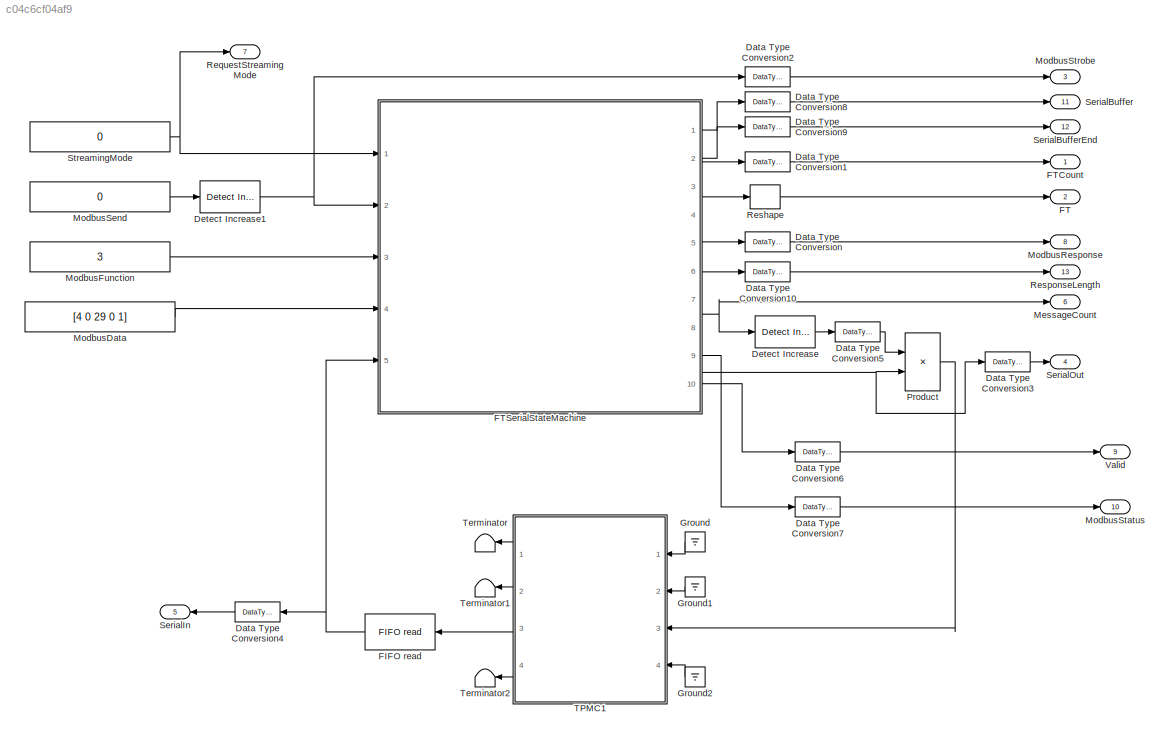
MODEL slx_c04c6cf04af9
KIND model
BLOCK [DataTypeConversion] Data Type Conversion
  OutDataTypeStr = double
  RndMeth = Floor
  SaturateOnIntegerOverflow = off
BLOCK [DataTypeConversion] Data Type Conversion1
  OutDataTypeStr = double
  RndMeth = Floor
  SaturateOnIntegerOverflow = off
BLOCK [DataTypeConversion] Data Type Conversion10
  OutDataTypeStr = double
  RndMeth = Floor
  SaturateOnIntegerOverflow = off
BLOCK [DataTypeConversion] Data Type Conversion2
  OutDataTypeStr = double
  RndMeth = Floor
  SaturateOnIntegerOverflow = off
BLOCK [DataTypeConversion] Data Type Conversion3
  OutDataTypeStr = double
  RndMeth = Floor
  SaturateOnIntegerOverflow = off
BLOCK [DataTypeConversion] Data Type Conversion4
  OutDataTypeStr = double
  RndMeth = Floor
  SaturateOnIntegerOverflow = off
BLOCK [DataTypeConversion] Data Type Conversion5
  OutDataTypeStr = uint16
  RndMeth = Floor
  SaturateOnIntegerOverflow = off
BLOCK [DataTypeConversion] Data Type Conversion6
  OutDataTypeStr = double
  RndMeth = Floor
  SaturateOnIntegerOverflow = off
BLOCK [DataTypeConversion] Data Type Conversion7
  OutDataTypeStr = double
  RndMeth = Floor
  SaturateOnIntegerOverflow = off
BLOCK [DataTypeConversion] Data Type Conversion8
  OutDataTypeStr = double
  RndMeth = Floor
  SaturateOnIntegerOverflow = off
BLOCK [DataTypeConversion] Data Type Conversion9
  OutDataTypeStr = double
  RndMeth = Floor
  SaturateOnIntegerOverflow = off
BLOCK [Reference] Detect Increase  REF=simulink/Logic and Bit
Operations/Detect
Increase
  InputProcessing = Inherited
  OutDataTypeStr = uint8
  Ports = [1, 1]
  SourceBlock = simulink/Logic and Bit\nOperations/Detect\nIncrease
  SourceType = Detect Increase
  vinit = 0.0
BLOCK [Reference] Detect Increase1  REF=simulink/Logic and Bit
Operations/Detect
Increase
  InputProcessing = Inherited
  OutDataTypeStr = uint8
  Ports = [1, 1]
  SourceBlock = simulink/Logic and Bit\nOperations/Detect\nIncrease
  SourceType = Detect Increase
  vinit = 0.0
BLOCK [Reference] FIFO read   REF=xpcseriallib/FIFO read 
  Ports = [1, 1]
  SourceBlock = xpcseriallib/FIFO read
  SourceType = Asynchronous FIFO Block: reader
  delimiter = 13
  enable = off
  enableout = off
  maxsize = 255
  minsize = 1
  outputtype = count+16 bit uint
  sampletime = 0.001
  usedelimiter = off
BLOCK [Outport] FT
  IconDisplay = Port number
  Port = 2
BLOCK [Outport] FTCount
  IconDisplay = Port number
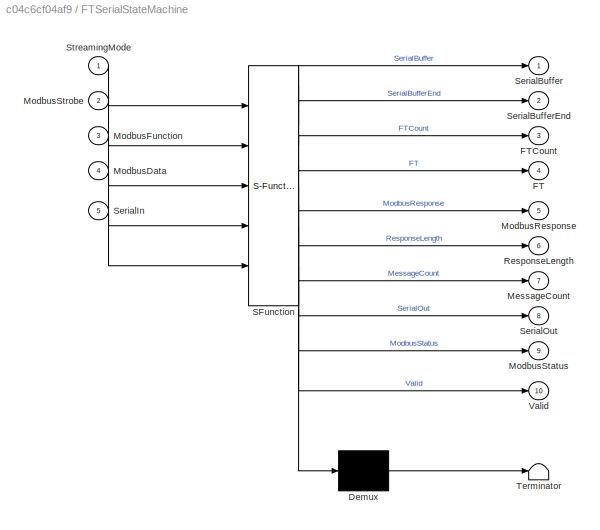
BLOCK [SubSystem] FTSerialStateMachine
  ErrorFcn = Stateflow.Translate.translate
  FunctionWithSeparateData = off
  MaskHideContents = off
  MinAlgLoopOccurrences = off
  Opaque = off
  PermitHierarchicalResolution = ExplicitOnly
  Ports = [5, 10]
  PropExecContextOutsideSubsystem = off
  RTWSystemCode = Auto
  RequestExecContextInheritance = off
  SFBlockType = Chart
  TreatAsAtomicUnit = on
BLOCK [Demux] FTSerialStateMachine/ Demux 
  Outputs = 1
  Ports = [1, 1]
BLOCK [S-Function] FTSerialStateMachine/ SFunction 
  EnableBusSupport = on
  FunctionName = sf_sfun
  Parameters = MODBUS_TIMEOUT,STREAMING_TIMEOUT
  PortCounts = [5 11]
  Ports = [5, 11]
  Tag = Stateflow S-Function FTTest05 3
BLOCK [Terminator] FTSerialStateMachine/ Terminator 
BLOCK [Outport] FTSerialStateMachine/FT
  IconDisplay = Port number
  Port = 4
BLOCK [Outport] FTSerialStateMachine/FTCount
  IconDisplay = Port number
  Port = 3
BLOCK [Outport] FTSerialStateMachine/MessageCount
  IconDisplay = Port number
  Port = 7
BLOCK [Inport] FTSerialStateMachine/ModbusData
  IconDisplay = Port number
  Port = 4
BLOCK [Inport] FTSerialStateMachine/ModbusFunction
  IconDisplay = Port number
  Port = 3
BLOCK [Outport] FTSerialStateMachine/ModbusResponse
  IconDisplay = Port number
  Port = 5
BLOCK [Outport] FTSerialStateMachine/ModbusStatus
  IconDisplay = Port number
  Port = 9
BLOCK [Inport] FTSerialStateMachine/ModbusStrobe
  IconDisplay = Port number
  Port = 2
BLOCK [Outport] FTSerialStateMachine/ResponseLength
  IconDisplay = Port number
  Port = 6
BLOCK [Outport] FTSerialStateMachine/SerialBuffer
  IconDisplay = Port number
BLOCK [Outport] FTSerialStateMachine/SerialBufferEnd
  IconDisplay = Port number
  Port = 2
BLOCK [Inport] FTSerialStateMachine/SerialIn
  IconDisplay = Port number
  Port = 5
BLOCK [Outport] FTSerialStateMachine/SerialOut
  IconDisplay = Port number
  Port = 8
BLOCK [Inport] FTSerialStateMachine/StreamingMode
  IconDisplay = Port number
BLOCK [Outport] FTSerialStateMachine/Valid
  IconDisplay = Port number
  Port = 10
BLOCK [Ground] Ground
BLOCK [Ground] Ground1
BLOCK [Ground] Ground2
BLOCK [Outport] MessageCount
  IconDisplay = Port number
  Port = 6
BLOCK [Constant] ModbusData
  OutDataTypeStr = uint16
  Value = [4 0 29 0 1]
BLOCK [Constant] ModbusFunction
  OutDataTypeStr = uint16
  Value = 3
BLOCK [Outport] ModbusResponse
  IconDisplay = Port number
  Port = 8
BLOCK [Constant] ModbusSend
  OutDataTypeStr = uint16
  Value = 0
BLOCK [Outport] ModbusStatus
  IconDisplay = Port number
  Port = 10
BLOCK [Outport] ModbusStrobe
  IconDisplay = Port number
  Port = 3
BLOCK [Product] Product
  InputSameDT = off
  OutDataTypeStr = uint16
  Ports = [2, 1]
  RndMeth = Floor
  SaturateOnIntegerOverflow = off
BLOCK [Outport] RequestStreamingMode
  IconDisplay = Port number
  Port = 7
BLOCK [Reshape] Reshape
  Ports = [1, 1]
BLOCK [Outport] ResponseLength
  IconDisplay = Port number
  Port = 13
BLOCK [Outport] SerialBuffer
  IconDisplay = Port number
  Port = 11
BLOCK [Outport] SerialBufferEnd
  IconDisplay = Port number
  Port = 12
BLOCK [Outport] SerialIn
  IconDisplay = Port number
  Port = 5
BLOCK [Outport] SerialOut
  IconDisplay = Port number
  Port = 4
BLOCK [Constant] StreamingMode
  OutDataTypeStr = double
  Value = 0
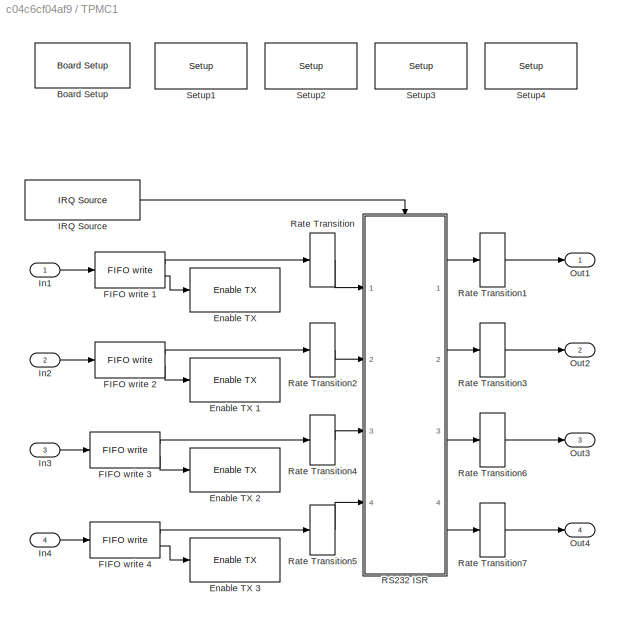
BLOCK [SubSystem] TPMC1
  AncestorBlock = speedgoatlib/IO503/TPMC466
  FunctionWithSeparateData = off
  InitFcn = m_XR17D15x(3);
  MaskHideContents = off
  MinAlgLoopOccurrences = off
  Opaque = off
  Ports = [4, 4]
  PropExecContextOutsideSubsystem = off
  RTWSystemCode = Auto
  RequestExecContextInheritance = off
BLOCK [Reference] TPMC1/Board Setup  REF=speedgoatlib/IO503/TEWS TPMC466  (lib defined in mdl_2b10c7445f81, mdl_649b3eec89a6, +4 more)
Internal blocks/Board Setup
  Ports = []
  SourceBlock = speedgoatlib/IO503/TEWS TPMC466\nInternal blocks/Board Setup
  SourceType = board_setup_XR17D15x
  irqnum = 5
  slot = brdslot
BLOCK [Reference] TPMC1/Enable TX   REF=speedgoatlib/IO503/TEWS TPMC466  (lib defined in mdl_2b10c7445f81, mdl_649b3eec89a6, +4 more)
Internal blocks/Enable TX 
  Ports = [1]
  SourceBlock = speedgoatlib/IO503/TEWS TPMC466\nInternal blocks/Enable TX
  SourceType = tx_int_enable_XR17D15x
  port = 1
  slot = brdslot
BLOCK [Reference] TPMC1/Enable TX 1  REF=speedgoatlib/IO503/TEWS TPMC466  (lib defined in mdl_2b10c7445f81, mdl_649b3eec89a6, +4 more)
Internal blocks/Enable TX 
  Ports = [1]
  SourceBlock = speedgoatlib/IO503/TEWS TPMC466\nInternal blocks/Enable TX
  SourceType = tx_int_enable_XR17D15x
  port = 2
  slot = brdslot
BLOCK [Reference] TPMC1/Enable TX 2  REF=speedgoatlib/IO503/TEWS TPMC466  (lib defined in mdl_2b10c7445f81, mdl_649b3eec89a6, +4 more)
Internal blocks/Enable TX 
  Ports = [1]
  SourceBlock = speedgoatlib/IO503/TEWS TPMC466\nInternal blocks/Enable TX
  SourceType = tx_int_enable_XR17D15x
  port = 3
  slot = brdslot
BLOCK [Reference] TPMC1/Enable TX 3  REF=speedgoatlib/IO503/TEWS TPMC466  (lib defined in mdl_2b10c7445f81, mdl_649b3eec89a6, +4 more)
Internal blocks/Enable TX 
  Ports = [1]
  SourceBlock = speedgoatlib/IO503/TEWS TPMC466\nInternal blocks/Enable TX
  SourceType = tx_int_enable_XR17D15x
  port = 4
  slot = brdslot
BLOCK [Reference] TPMC1/FIFO write 1  REF=xpcseriallib/FIFO write 
  Ports = [1, 2]
  SourceBlock = xpcseriallib/FIFO write
  SourceType = Asynchronous FIFO Block: writer
  id = XMT channel 1, IRQ 5
  inputtype = 8 bit uint null terminated
  present = on
  sampletime = -1
  size = 1024
BLOCK [Reference] TPMC1/FIFO write 2  REF=xpcseriallib/FIFO write 
  Ports = [1, 2]
  SourceBlock = xpcseriallib/FIFO write
  SourceType = Asynchronous FIFO Block: writer
  id = XMT channel 2, IRQ 5
  inputtype = 8 bit uint null terminated
  present = on
  sampletime = -1
  size = 1024
BLOCK [Reference] TPMC1/FIFO write 3  REF=xpcseriallib/FIFO write 
  Ports = [1, 2]
  SourceBlock = xpcseriallib/FIFO write
  SourceType = Asynchronous FIFO Block: writer
  id = XMT channel 3, IRQ 5
  inputtype = count+16 bit uint
  present = on
  sampletime = -1
  size = 128
BLOCK [Reference] TPMC1/FIFO write 4  REF=xpcseriallib/FIFO write 
  Ports = [1, 2]
  SourceBlock = xpcseriallib/FIFO write
  SourceType = Asynchronous FIFO Block: writer
  id = XMT channel 4, IRQ 5
  inputtype = 8 bit uint null terminated
  present = on
  sampletime = -1
  size = 1024
BLOCK [Reference] TPMC1/IRQ Source  REF=xpclib/Asynchronous
Event/IRQ Source
  Ports = [0, 1]
  SourceBlock = xpclib/Asynchronous\nEvent/IRQ Source
  SourceType = xpcinterrupt
  b_type = None/Other
  irqNo = 5
  preempt = off
  slot = brdslot
BLOCK [Inport] TPMC1/In1
  IconDisplay = Port number
BLOCK [Inport] TPMC1/In2
  IconDisplay = Port number
  Port = 2
BLOCK [Inport] TPMC1/In3
  IconDisplay = Port number
  Port = 3
BLOCK [Inport] TPMC1/In4
  IconDisplay = Port number
  Port = 4
BLOCK [Outport] TPMC1/Out1
  IconDisplay = Port number
BLOCK [Outport] TPMC1/Out2
  IconDisplay = Port number
  Port = 2
BLOCK [Outport] TPMC1/Out3
  IconDisplay = Port number
  Port = 3
BLOCK [Outport] TPMC1/Out4
  IconDisplay = Port number
  Port = 4
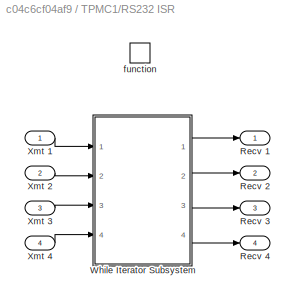
BLOCK [SubSystem] TPMC1/RS232 ISR
  FunctionWithSeparateData = off
  MaskHideContents = off
  MinAlgLoopOccurrences = off
  Opaque = off
  Ports = [4, 4, 0, 1]
  PropExecContextOutsideSubsystem = off
  RTWSystemCode = Auto
  RequestExecContextInheritance = off
  TreatAsAtomicUnit = on
BLOCK [Outport] TPMC1/RS232 ISR/Recv 1
  IconDisplay = Port number
  SourceOfInitialOutputValue = Input signal
BLOCK [Outport] TPMC1/RS232 ISR/Recv 2
  IconDisplay = Port number
  Port = 2
  SourceOfInitialOutputValue = Input signal
BLOCK [Outport] TPMC1/RS232 ISR/Recv 3
  IconDisplay = Port number
  Port = 3
  SourceOfInitialOutputValue = Input signal
BLOCK [Outport] TPMC1/RS232 ISR/Recv 4
  IconDisplay = Port number
  Port = 4
  SourceOfInitialOutputValue = Input signal
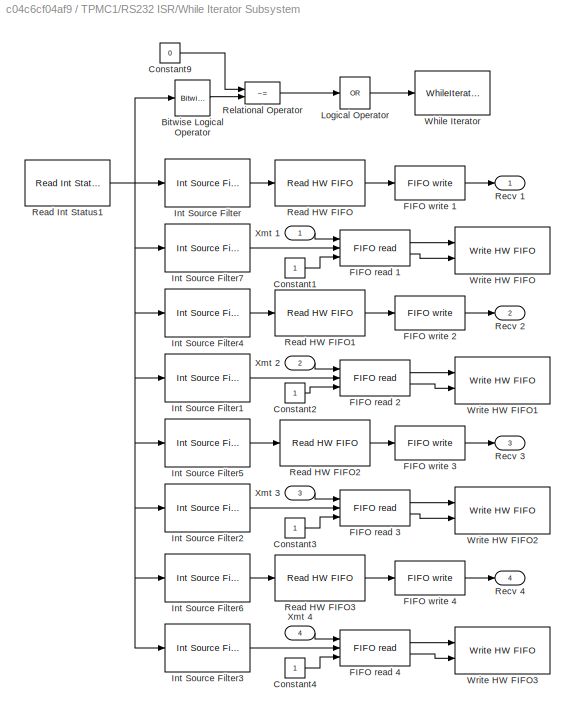
BLOCK [SubSystem] TPMC1/RS232 ISR/While Iterator Subsystem
  FunctionWithSeparateData = off
  MaskHideContents = off
  MinAlgLoopOccurrences = off
  Opaque = off
  Ports = [4, 4]
  PropExecContextOutsideSubsystem = off
  RTWSystemCode = Auto
  RequestExecContextInheritance = off
  TreatAsAtomicUnit = on
BLOCK [Reference] TPMC1/RS232 ISR/While Iterator Subsystem/Bitwise Logical Operator  REF=simulink/Logic and Bit
Operations/Bitwise
Operator
  BitMask = 'FF'
  BitMaskRealWorld = Stored Integer
  NumInputPorts = 1
  Ports = [1, 1]
  SourceBlock = simulink/Logic and Bit\nOperations/Bitwise\nOperator
  SourceType = Bitwise Operator
  UseBitMask = on
  logicop = AND
BLOCK [Constant] TPMC1/RS232 ISR/While Iterator Subsystem/Constant1
  OutDataTypeStr = uint32
BLOCK [Constant] TPMC1/RS232 ISR/While Iterator Subsystem/Constant2
  OutDataTypeStr = uint32
BLOCK [Constant] TPMC1/RS232 ISR/While Iterator Subsystem/Constant3
  OutDataTypeStr = uint32
BLOCK [Constant] TPMC1/RS232 ISR/While Iterator Subsystem/Constant4
  OutDataTypeStr = uint32
BLOCK [Constant] TPMC1/RS232 ISR/While Iterator Subsystem/Constant9
  OutDataTypeStr = uint32
  Value = 0
BLOCK [Reference] TPMC1/RS232 ISR/While Iterator Subsystem/FIFO read 1  REF=xpcseriallib/FIFO read 
  Ports = [3, 2]
  SourceBlock = xpcseriallib/FIFO read
  SourceType = Asynchronous FIFO Block: reader
  delimiter = 13
  enable = on
  enableout = on
  maxsize = 60
  minsize = 1
  outputtype = count+32 bit uint
  sampletime = -1
  usedelimiter = off
BLOCK [Reference] TPMC1/RS232 ISR/While Iterator Subsystem/FIFO read 2  REF=xpcseriallib/FIFO read 
  Ports = [3, 2]
  SourceBlock = xpcseriallib/FIFO read
  SourceType = Asynchronous FIFO Block: reader
  delimiter = 13
  enable = on
  enableout = on
  maxsize = 60
  minsize = 1
  outputtype = count+32 bit uint
  sampletime = -1
  usedelimiter = off
BLOCK [Reference] TPMC1/RS232 ISR/While Iterator Subsystem/FIFO read 3  REF=xpcseriallib/FIFO read 
  Ports = [3, 2]
  SourceBlock = xpcseriallib/FIFO read
  SourceType = Asynchronous FIFO Block: reader
  delimiter = 13
  enable = on
  enableout = on
  maxsize = 60
  minsize = 1
  outputtype = count+32 bit uint
  sampletime = -1
  usedelimiter = off
BLOCK [Reference] TPMC1/RS232 ISR/While Iterator Subsystem/FIFO read 4  REF=xpcseriallib/FIFO read 
  Ports = [3, 2]
  SourceBlock = xpcseriallib/FIFO read
  SourceType = Asynchronous FIFO Block: reader
  delimiter = 13
  enable = on
  enableout = on
  maxsize = 60
  minsize = 1
  outputtype = count+32 bit uint
  sampletime = -1
  usedelimiter = off
BLOCK [Reference] TPMC1/RS232 ISR/While Iterator Subsystem/FIFO write 1  REF=xpcseriallib/FIFO write 
  Ports = [1, 1]
  SourceBlock = xpcseriallib/FIFO write
  SourceType = Asynchronous FIFO Block: writer
  id = RCV channel 1, IRQ 5
  inputtype = count+32 bit uint
  present = off
  sampletime = -1
  size = 1024
BLOCK [Reference] TPMC1/RS232 ISR/While Iterator Subsystem/FIFO write 2  REF=xpcseriallib/FIFO write 
  Ports = [1, 1]
  SourceBlock = xpcseriallib/FIFO write
  SourceType = Asynchronous FIFO Block: writer
  id = RCV channel 2, IRQ 5
  inputtype = count+32 bit uint
  present = off
  sampletime = -1
  size = 1024
BLOCK [Reference] TPMC1/RS232 ISR/While Iterator Subsystem/FIFO write 3  REF=xpcseriallib/FIFO write 
  Ports = [1, 1]
  SourceBlock = xpcseriallib/FIFO write
  SourceType = Asynchronous FIFO Block: writer
  id = RCV channel 3, IRQ 5
  inputtype = count+32 bit uint
  present = off
  sampletime = -1
  size = 1024
BLOCK [Reference] TPMC1/RS232 ISR/While Iterator Subsystem/FIFO write 4  REF=xpcseriallib/FIFO write 
  Ports = [1, 1]
  SourceBlock = xpcseriallib/FIFO write
  SourceType = Asynchronous FIFO Block: writer
  id = RCV channel 4, IRQ 5
  inputtype = count+32 bit uint
  present = off
  sampletime = -1
  size = 1024
BLOCK [Reference] TPMC1/RS232 ISR/While Iterator Subsystem/Int Source Filter  REF=speedgoatlib/IO503/TEWS TPMC466  (lib defined in mdl_2b10c7445f81, mdl_649b3eec89a6, +4 more)
Internal blocks/Int Source Filter
  Ports = [1, 1]
  SourceBlock = speedgoatlib/IO503/TEWS TPMC466\nInternal blocks/Int Source Filter
  SourceType = int_source_filter_XR17D15x
  port = 1
  value = Receive data
BLOCK [Reference] TPMC1/RS232 ISR/While Iterator Subsystem/Int Source Filter1  REF=speedgoatlib/IO503/TEWS TPMC466  (lib defined in mdl_2b10c7445f81, mdl_649b3eec89a6, +4 more)
Internal blocks/Int Source Filter
  Ports = [1, 1]
  SourceBlock = speedgoatlib/IO503/TEWS TPMC466\nInternal blocks/Int Source Filter
  SourceType = int_source_filter_XR17D15x
  port = 2
  value = Transmitter empty
BLOCK [Reference] TPMC1/RS232 ISR/While Iterator Subsystem/Int Source Filter2  REF=speedgoatlib/IO503/TEWS TPMC466  (lib defined in mdl_2b10c7445f81, mdl_649b3eec89a6, +4 more)
Internal blocks/Int Source Filter
  Ports = [1, 1]
  SourceBlock = speedgoatlib/IO503/TEWS TPMC466\nInternal blocks/Int Source Filter
  SourceType = int_source_filter_XR17D15x
  port = 3
  value = Transmitter empty
BLOCK [Reference] TPMC1/RS232 ISR/While Iterator Subsystem/Int Source Filter3  REF=speedgoatlib/IO503/TEWS TPMC466  (lib defined in mdl_2b10c7445f81, mdl_649b3eec89a6, +4 more)
Internal blocks/Int Source Filter
  Ports = [1, 1]
  SourceBlock = speedgoatlib/IO503/TEWS TPMC466\nInternal blocks/Int Source Filter
  SourceType = int_source_filter_XR17D15x
  port = 4
  value = Transmitter empty
BLOCK [Reference] TPMC1/RS232 ISR/While Iterator Subsystem/Int Source Filter4  REF=speedgoatlib/IO503/TEWS TPMC466  (lib defined in mdl_2b10c7445f81, mdl_649b3eec89a6, +4 more)
Internal blocks/Int Source Filter
  Ports = [1, 1]
  SourceBlock = speedgoatlib/IO503/TEWS TPMC466\nInternal blocks/Int Source Filter
  SourceType = int_source_filter_XR17D15x
  port = 2
  value = Receive data
BLOCK [Reference] TPMC1/RS232 ISR/While Iterator Subsystem/Int Source Filter5  REF=speedgoatlib/IO503/TEWS TPMC466  (lib defined in mdl_2b10c7445f81, mdl_649b3eec89a6, +4 more)
Internal blocks/Int Source Filter
  Ports = [1, 1]
  SourceBlock = speedgoatlib/IO503/TEWS TPMC466\nInternal blocks/Int Source Filter
  SourceType = int_source_filter_XR17D15x
  port = 3
  value = Receive data
BLOCK [Reference] TPMC1/RS232 ISR/While Iterator Subsystem/Int Source Filter6  REF=speedgoatlib/IO503/TEWS TPMC466  (lib defined in mdl_2b10c7445f81, mdl_649b3eec89a6, +4 more)
Internal blocks/Int Source Filter
  Ports = [1, 1]
  SourceBlock = speedgoatlib/IO503/TEWS TPMC466\nInternal blocks/Int Source Filter
  SourceType = int_source_filter_XR17D15x
  port = 4
  value = Receive data
BLOCK [Reference] TPMC1/RS232 ISR/While Iterator Subsystem/Int Source Filter7  REF=speedgoatlib/IO503/TEWS TPMC466  (lib defined in mdl_2b10c7445f81, mdl_649b3eec89a6, +4 more)
Internal blocks/Int Source Filter
  Ports = [1, 1]
  SourceBlock = speedgoatlib/IO503/TEWS TPMC466\nInternal blocks/Int Source Filter
  SourceType = int_source_filter_XR17D15x
  port = 1
  value = Transmitter empty
BLOCK [Logic] TPMC1/RS232 ISR/While Iterator Subsystem/Logical Operator
  AllPortsSameDT = off
  Inputs = 1
  Operator = OR
  Ports = [1, 1]
BLOCK [Reference] TPMC1/RS232 ISR/While Iterator Subsystem/Read HW FIFO  REF=speedgoatlib/IO503/TEWS TPMC466  (lib defined in mdl_2b10c7445f81, mdl_649b3eec89a6, +4 more)
Internal blocks/Read HW FIFO
  Ports = [1, 1]
  SourceBlock = speedgoatlib/IO503/TEWS TPMC466\nInternal blocks/Read HW FIFO
  SourceType = read_hw_fifo_XR17D15x
  flush = on
  port = 1
  slot = subslot
BLOCK [Reference] TPMC1/RS232 ISR/While Iterator Subsystem/Read HW FIFO1  REF=speedgoatlib/IO503/TEWS TPMC466  (lib defined in mdl_2b10c7445f81, mdl_649b3eec89a6, +4 more)
Internal blocks/Read HW FIFO
  Ports = [1, 1]
  SourceBlock = speedgoatlib/IO503/TEWS TPMC466\nInternal blocks/Read HW FIFO
  SourceType = read_hw_fifo_XR17D15x
  flush = on
  port = 2
  slot = subslot
BLOCK [Reference] TPMC1/RS232 ISR/While Iterator Subsystem/Read HW FIFO2  REF=speedgoatlib/IO503/TEWS TPMC466  (lib defined in mdl_2b10c7445f81, mdl_649b3eec89a6, +4 more)
Internal blocks/Read HW FIFO
  Ports = [1, 1]
  SourceBlock = speedgoatlib/IO503/TEWS TPMC466\nInternal blocks/Read HW FIFO
  SourceType = read_hw_fifo_XR17D15x
  flush = on
  port = 3
  slot = subslot
BLOCK [Reference] TPMC1/RS232 ISR/While Iterator Subsystem/Read HW FIFO3  REF=speedgoatlib/IO503/TEWS TPMC466  (lib defined in mdl_2b10c7445f81, mdl_649b3eec89a6, +4 more)
Internal blocks/Read HW FIFO
  Ports = [1, 1]
  SourceBlock = speedgoatlib/IO503/TEWS TPMC466\nInternal blocks/Read HW FIFO
  SourceType = read_hw_fifo_XR17D15x
  flush = on
  port = 4
  slot = subslot
BLOCK [Reference] TPMC1/RS232 ISR/While Iterator Subsystem/Read Int Status1  REF=speedgoatlib/IO503/TEWS TPMC466  (lib defined in mdl_2b10c7445f81, mdl_649b3eec89a6, +4 more)
Internal blocks/Read Int Status
  Ports = [0, 1]
  SourceBlock = speedgoatlib/IO503/TEWS TPMC466\nInternal blocks/Read Int Status
  SourceType = read_int_status_XR17D15x
  slot = subslot
BLOCK [Outport] TPMC1/RS232 ISR/While Iterator Subsystem/Recv 1
  IconDisplay = Port number
  SourceOfInitialOutputValue = Input signal
BLOCK [Outport] TPMC1/RS232 ISR/While Iterator Subsystem/Recv 2
  IconDisplay = Port number
  Port = 2
  SourceOfInitialOutputValue = Input signal
BLOCK [Outport] TPMC1/RS232 ISR/While Iterator Subsystem/Recv 3
  IconDisplay = Port number
  Port = 3
  SourceOfInitialOutputValue = Input signal
BLOCK [Outport] TPMC1/RS232 ISR/While Iterator Subsystem/Recv 4
  IconDisplay = Port number
  Port = 4
  SourceOfInitialOutputValue = Input signal
BLOCK [RelationalOperator] TPMC1/RS232 ISR/While Iterator Subsystem/Relational Operator
  InputSameDT = off
  Operator = ~=
  Ports = [2, 1]
BLOCK [WhileIterator] TPMC1/RS232 ISR/While Iterator Subsystem/While Iterator
  MaxIters = 65
  Ports = [1]
  WhileBlockType = do-while
BLOCK [Reference] TPMC1/RS232 ISR/While Iterator Subsystem/Write HW FIFO  REF=speedgoatlib/IO503/TEWS TPMC466  (lib defined in mdl_2b10c7445f81, mdl_649b3eec89a6, +4 more)
Internal blocks/Write HW FIFO
  Ports = [2]
  SourceBlock = speedgoatlib/IO503/TEWS TPMC466\nInternal blocks/Write HW FIFO
  SourceType = write_hw_fifo_XR17D15x
  port = 1
  slot = subslot
BLOCK [Reference] TPMC1/RS232 ISR/While Iterator Subsystem/Write HW FIFO1  REF=speedgoatlib/IO503/TEWS TPMC466  (lib defined in mdl_2b10c7445f81, mdl_649b3eec89a6, +4 more)
Internal blocks/Write HW FIFO
  Ports = [2]
  SourceBlock = speedgoatlib/IO503/TEWS TPMC466\nInternal blocks/Write HW FIFO
  SourceType = write_hw_fifo_XR17D15x
  port = 2
  slot = subslot
BLOCK [Reference] TPMC1/RS232 ISR/While Iterator Subsystem/Write HW FIFO2  REF=speedgoatlib/IO503/TEWS TPMC466  (lib defined in mdl_2b10c7445f81, mdl_649b3eec89a6, +4 more)
Internal blocks/Write HW FIFO
  Ports = [2]
  SourceBlock = speedgoatlib/IO503/TEWS TPMC466\nInternal blocks/Write HW FIFO
  SourceType = write_hw_fifo_XR17D15x
  port = 3
  slot = subslot
BLOCK [Reference] TPMC1/RS232 ISR/While Iterator Subsystem/Write HW FIFO3  REF=speedgoatlib/IO503/TEWS TPMC466  (lib defined in mdl_2b10c7445f81, mdl_649b3eec89a6, +4 more)
Internal blocks/Write HW FIFO
  Ports = [2]
  SourceBlock = speedgoatlib/IO503/TEWS TPMC466\nInternal blocks/Write HW FIFO
  SourceType = write_hw_fifo_XR17D15x
  port = 4
  slot = subslot
BLOCK [Inport] TPMC1/RS232 ISR/While Iterator Subsystem/Xmt 1
  IconDisplay = Port number
BLOCK [Inport] TPMC1/RS232 ISR/While Iterator Subsystem/Xmt 2
  IconDisplay = Port number
  Port = 2
BLOCK [Inport] TPMC1/RS232 ISR/While Iterator Subsystem/Xmt 3
  IconDisplay = Port number
  Port = 3
BLOCK [Inport] TPMC1/RS232 ISR/While Iterator Subsystem/Xmt 4
  IconDisplay = Port number
  Port = 4
BLOCK [Inport] TPMC1/RS232 ISR/Xmt 1
  IconDisplay = Port number
BLOCK [Inport] TPMC1/RS232 ISR/Xmt 2
  IconDisplay = Port number
  Port = 2
BLOCK [Inport] TPMC1/RS232 ISR/Xmt 3
  IconDisplay = Port number
  Port = 3
BLOCK [Inport] TPMC1/RS232 ISR/Xmt 4
  IconDisplay = Port number
  Port = 4
BLOCK [TriggerPort] TPMC1/RS232 ISR/function
  Ports = []
  StatesWhenEnabling = held
  TriggerType = function-call
BLOCK [RateTransition] TPMC1/Rate Transition
  Deterministic = off
  Integrity = off
BLOCK [RateTransition] TPMC1/Rate Transition1
  Deterministic = off
  Integrity = off
  OutPortSampleTime = 0
BLOCK [RateTransition] TPMC1/Rate Transition2
  Deterministic = off
  Integrity = off
BLOCK [RateTransition] TPMC1/Rate Transition3
  Deterministic = off
  Integrity = off
  OutPortSampleTime = 0
BLOCK [RateTransition] TPMC1/Rate Transition4
  Deterministic = off
  Integrity = off
BLOCK [RateTransition] TPMC1/Rate Transition5
  Deterministic = off
  Integrity = off
BLOCK [RateTransition] TPMC1/Rate Transition6
  Deterministic = off
  Integrity = off
  OutPortSampleTime = 0
BLOCK [RateTransition] TPMC1/Rate Transition7
  Deterministic = off
  Integrity = off
  OutPortSampleTime = 0
BLOCK [Reference] TPMC1/Setup1  REF=speedgoatlib/IO503/TEWS TPMC466  (lib defined in mdl_2b10c7445f81, mdl_649b3eec89a6, +4 more)
Internal blocks/Setup 
  Ports = []
  SourceBlock = speedgoatlib/IO503/TEWS TPMC466\nInternal blocks/Setup
  SourceType = setup_XR17D15x
  bauddivisor = 1
  baudrate = 115200
  ctsmode = none
  mode8x = 16x (standard)
  nstop = 1
  parity = None
  port = 1
  prescale = off
  rlevel = 1
  rs485delay = 0
  rs485mode = off
  slot = brdslot
  standard = on
  transceiver = RS485 half-duplex
  width = 8
  xoff = 19
  xon = 17
  xonoff = none
BLOCK [Reference] TPMC1/Setup2  REF=speedgoatlib/IO503/TEWS TPMC466  (lib defined in mdl_2b10c7445f81, mdl_649b3eec89a6, +4 more)
Internal blocks/Setup 
  Ports = []
  SourceBlock = speedgoatlib/IO503/TEWS TPMC466\nInternal blocks/Setup
  SourceType = setup_XR17D15x
  bauddivisor = 1
  baudrate = 115200
  ctsmode = none
  mode8x = 16x (standard)
  nstop = 1
  parity = None
  port = 2
  prescale = off
  rlevel = 1
  rs485delay = 0
  rs485mode = off
  slot = brdslot
  standard = on
  transceiver = RS232 (max 921.6kb/s)
  width = 8
  xoff = 19
  xon = 17
  xonoff = none
BLOCK [Reference] TPMC1/Setup3  REF=speedgoatlib/IO503/TEWS TPMC466  (lib defined in mdl_2b10c7445f81, mdl_649b3eec89a6, +4 more)
Internal blocks/Setup 
  Ports = []
  SourceBlock = speedgoatlib/IO503/TEWS TPMC466\nInternal blocks/Setup
  SourceType = setup_XR17D15x
  bauddivisor = 1
  baudrate = 1382400
  ctsmode = none
  mode8x = 16x (standard)
  nstop = 1
  parity = Even
  port = 3
  prescale = off
  rlevel = 1
  rs485delay = 2
  rs485mode = on
  slot = brdslot
  standard = on
  transceiver = RS485 half-duplex
  width = 8
  xoff = 19
  xon = 17
  xonoff = none
BLOCK [Reference] TPMC1/Setup4  REF=speedgoatlib/IO503/TEWS TPMC466  (lib defined in mdl_2b10c7445f81, mdl_649b3eec89a6, +4 more)
Internal blocks/Setup 
  Ports = []
  SourceBlock = speedgoatlib/IO503/TEWS TPMC466\nInternal blocks/Setup
  SourceType = setup_XR17D15x
  bauddivisor = 1
  baudrate = 115200
  ctsmode = none
  mode8x = 16x (standard)
  nstop = 1
  parity = None
  port = 4
  prescale = off
  rlevel = half full (32)
  rs485delay = 0
  rs485mode = off
  slot = brdslot
  standard = on
  transceiver = RS232 (max 921.6kb/s)
  width = 8
  xoff = 19
  xon = 17
  xonoff = none
BLOCK [Terminator] Terminator
BLOCK [Terminator] Terminator1
BLOCK [Terminator] Terminator2
BLOCK [Outport] Valid
  IconDisplay = Port number
  Port = 9
LINE Data Type Conversion10:1 -> ResponseLength:1
LINE Data Type Conversion1:1 -> FTCount:1
LINE Data Type Conversion2:1 -> ModbusStrobe:1
LINE Data Type Conversion3:1 -> SerialOut:1
LINE Data Type Conversion4:1 -> SerialIn:1
LINE Data Type Conversion5:1 -> Product:1
LINE Data Type Conversion6:1 -> Valid:1
LINE Data Type Conversion7:1 -> ModbusStatus:1
LINE Data Type Conversion8:1 -> SerialBuffer:1
LINE Data Type Conversion9:1 -> SerialBufferEnd:1
LINE Data Type Conversion:1 -> ModbusResponse:1
NET Detect Increase1:1 -> Data Type Conversion2:1, FTSerialStateMachine:2
LINE Detect Increase:1 -> Data Type Conversion5:1
NET FIFO read :1 -> Data Type Conversion4:1, FTSerialStateMachine:5
LINE FTSerialStateMachine:1 -> Data Type Conversion8:1
LINE FTSerialStateMachine:10 -> Data Type Conversion6:1
LINE FTSerialStateMachine:2 -> Data Type Conversion9:1
LINE FTSerialStateMachine:3 -> Data Type Conversion1:1
LINE FTSerialStateMachine:4 -> Reshape:1
LINE FTSerialStateMachine:5 -> Data Type Conversion:1
LINE FTSerialStateMachine:6 -> Data Type Conversion10:1
NET FTSerialStateMachine:7 -> Detect Increase:1, MessageCount:1
NET FTSerialStateMachine:8 -> Data Type Conversion3:1, Product:2
LINE FTSerialStateMachine:9 -> Data Type Conversion7:1
LINE Ground1:1 -> TPMC1:2
LINE Ground2:1 -> TPMC1:4
LINE Ground:1 -> TPMC1:1
LINE ModbusData:1 -> FTSerialStateMachine:4
LINE ModbusFunction:1 -> FTSerialStateMachine:3
LINE ModbusSend:1 -> Detect Increase1:1
LINE Product:1 -> TPMC1:3
LINE Reshape:1 -> FT:1
NET StreamingMode:1 -> FTSerialStateMachine:1, RequestStreamingMode:1
LINE TPMC1:1 -> Terminator:1
LINE TPMC1:2 -> Terminator1:1
LINE TPMC1:3 -> FIFO read :1
LINE TPMC1:4 -> Terminator2:1
note: NET lines group one-source signal fan-out (src -> all destinations, sorted); 1:1 wires keep LINE
